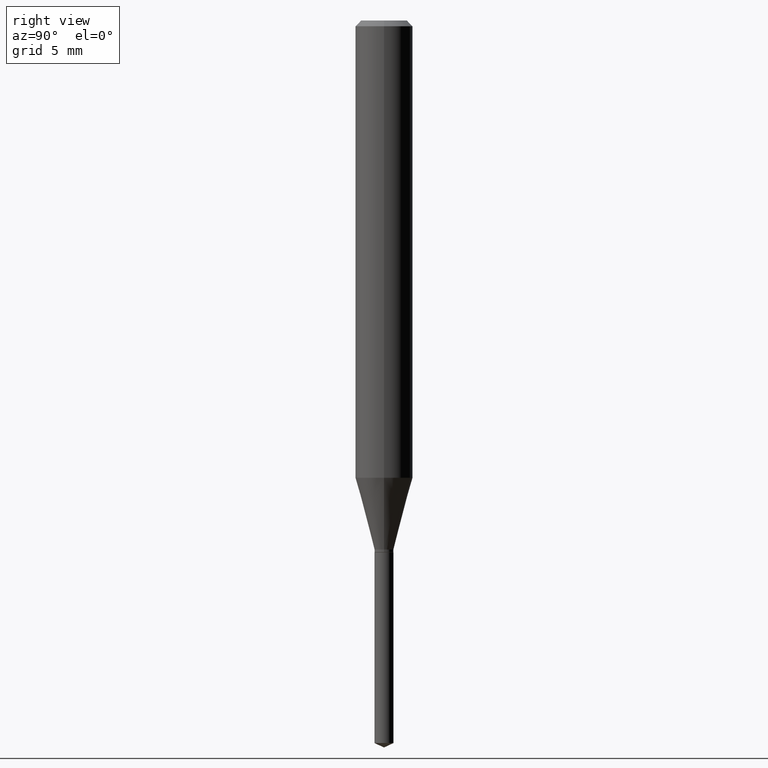
[diagram: clean part render]
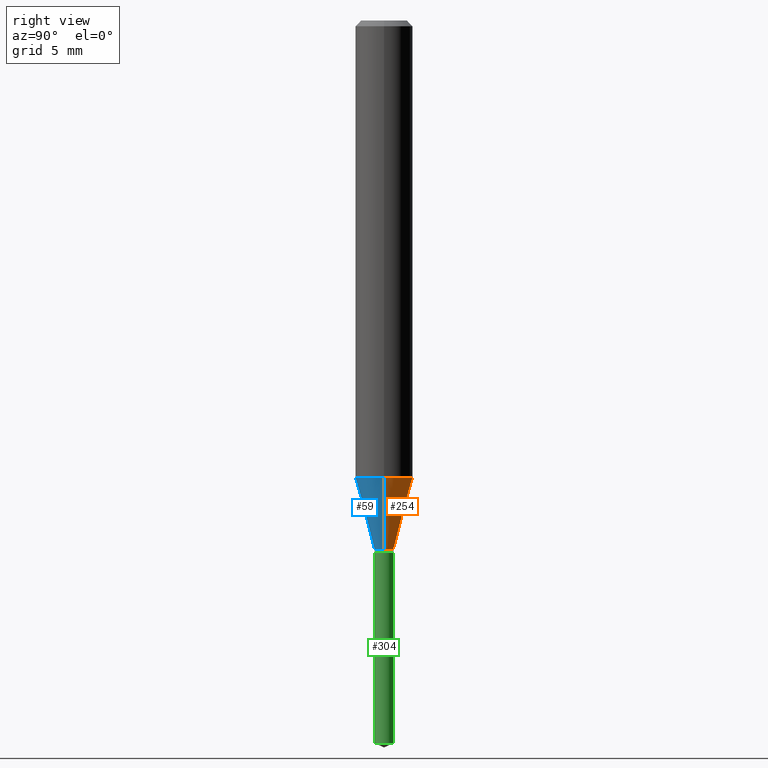
[diagram: same view with three faces highlighted in distinct colors, each labeled with its STEP entity id]
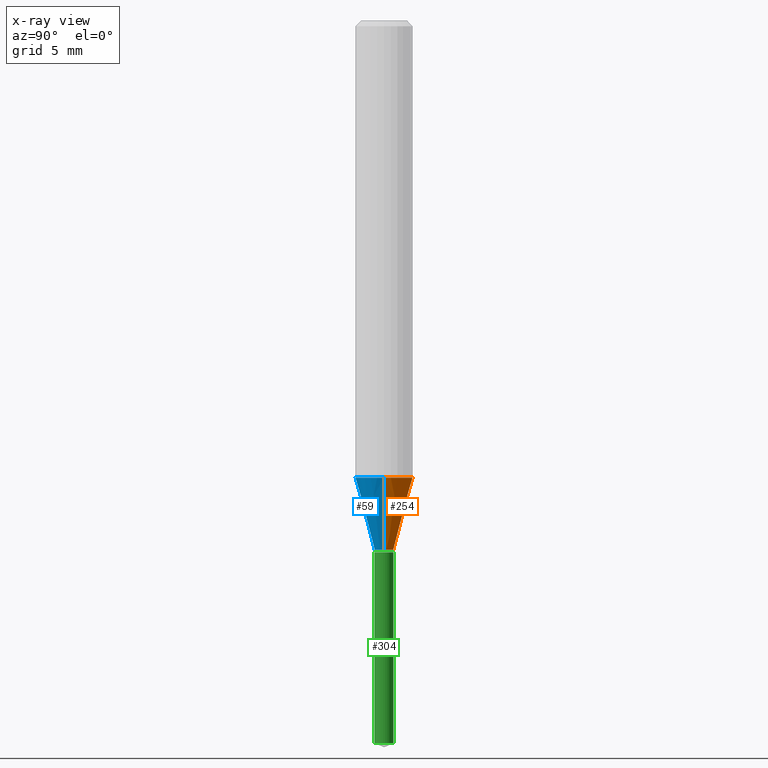
[diagram: x-ray of the same camera — body ghosted, the three highlighted faces saturated]
A machine part, right view with three faces highlighted in distinct colors.
The next image is the same camera in x-ray (body ghosted, the three faces saturated) — at least one of them is partly hidden behind the body in this view.
Their STEP definitions:

[orange] entity #254 — the highlighted conical surface has half-angle 15 deg.
#19 = LINE ( 'NONE', #174, #125 ) ;
#25 = AXIS2_PLACEMENT_3D ( 'NONE', #410, #71, #335 ) ;
#34 = VERTEX_POINT ( 'NONE', #109 ) ;
#38 = CARTESIAN_POINT ( 'NONE',  ( -0.01949999999999999997, -3.662270751991428189E-15, -1.088600000000000012 ) ) ;
#47 = EDGE_CURVE ( 'NONE', #34, #385, #250, .T. ) ;
#54 = CARTESIAN_POINT ( 'NONE',  ( 0.01949999999999999997, -3.936994357679530254E-15, -1.088600000000000012 ) ) ;
#71 = DIRECTION ( 'NONE',  ( -2.445468806185136597E-29, 3.491481338843145583E-15, 1.000000000000000000 ) ) ;
#79 = LINE ( 'NONE', #38, #197 ) ;
#93 = FACE_OUTER_BOUND ( 'NONE', #345, .T. ) ;
#109 = CARTESIAN_POINT ( 'NONE',  ( 0.05905000000000010935, -3.697818775159981807E-15, -0.9409973905606506817 ) ) ;
#125 = VECTOR ( 'NONE', #440, 39.37007874015748854 ) ;
#131 = DIRECTION ( 'NONE',  ( 1.000000000000000000, -6.982962677686258033E-15, 0.000000000000000000 ) ) ;
#141 = AXIS2_PLACEMENT_3D ( 'NONE', #211, #466, #131 ) ;
#174 = CARTESIAN_POINT ( 'NONE',  ( 0.01949999999999999997, -3.936994357679530254E-15, -1.088600000000000012 ) ) ;
#180 = VERTEX_POINT ( 'NONE', #54 ) ;
#197 = VECTOR ( 'NONE', #294, 39.37007874015748854 ) ;
#211 = CARTESIAN_POINT ( 'NONE',  ( 2.662137342413139764E-29, -3.800826585464648242E-15, -1.088600000000000012 ) ) ;
#234 = DIRECTION ( 'NONE',  ( 1.000000000000000000, -6.982962677686267499E-15, 0.000000000000000000 ) ) ;
#250 = CIRCLE ( 'NONE', #368, 0.05905000000000010935 ) ;
#254 = ADVANCED_FACE ( 'NONE', ( #93 ), #401, .T. ) ;
#258 = CARTESIAN_POINT ( 'NONE',  ( -0.01949999999999999997, -3.671697751606305097E-15, -1.088600000000000012 ) ) ;
#273 = ORIENTED_EDGE ( 'NONE', *, *, #465, .T. ) ;
#274 = EDGE_CURVE ( 'NONE', #180, #34, #19, .T. ) ;
#294 = DIRECTION ( 'NONE',  ( -0.2588190451025211281, 5.211531920934547886E-15, 0.9659258262890679791 ) ) ;
#297 = ORIENTED_EDGE ( 'NONE', *, *, #347, .T. ) ;
#308 = CARTESIAN_POINT ( 'NONE',  ( 2.301179765317683209E-29, -3.285474829042607282E-15, -0.9409973905606506817 ) ) ;
#314 = ORIENTED_EDGE ( 'NONE', *, *, #47, .F. ) ;
#332 = VERTEX_POINT ( 'NONE', #258 ) ;
#335 = DIRECTION ( 'NONE',  ( 1.000000000000000000, -6.982962677686258033E-15, 0.000000000000000000 ) ) ;
#345 = EDGE_LOOP ( 'NONE', ( #297, #273, #314, #375 ) ) ;
#347 = EDGE_CURVE ( 'NONE', #180, #332, #409, .T. ) ;
#368 = AXIS2_PLACEMENT_3D ( 'NONE', #308, #453, #234 ) ;
#371 = CARTESIAN_POINT ( 'NONE',  ( -0.05905000000000010935, -2.865899343576267000E-15, -0.9409973905606506817 ) ) ;
#375 = ORIENTED_EDGE ( 'NONE', *, *, #274, .F. ) ;
#385 = VERTEX_POINT ( 'NONE', #371 ) ;
#401 = CONICAL_SURFACE ( 'NONE', #141, 0.01949999999999999997, 0.2617993877991498519 ) ;
#409 = CIRCLE ( 'NONE', #25, 0.01949999999999999997 ) ;
#410 = CARTESIAN_POINT ( 'NONE',  ( 2.662137342413139764E-29, -3.800826585464648242E-15, -1.088600000000000012 ) ) ;
#440 = DIRECTION ( 'NONE',  ( 0.2588190451025211281, 1.565188264969622954E-15, 0.9659258262890679791 ) ) ;
#453 = DIRECTION ( 'NONE',  ( -2.445468806185136597E-29, 3.491481338843145583E-15, 1.000000000000000000 ) ) ;
#465 = EDGE_CURVE ( 'NONE', #332, #385, #79, .T. ) ;
#466 = DIRECTION ( 'NONE',  ( -2.445468806185136597E-29, 3.491481338843145583E-15, 1.000000000000000000 ) ) ;

[blue] entity #59 — the highlighted conical surface has half-angle 15 deg.
#8 = DIRECTION ( 'NONE',  ( 1.000000000000000000, -6.982962677686258033E-15, 0.000000000000000000 ) ) ;
#9 = EDGE_CURVE ( 'NONE', #385, #34, #44, .T. ) ;
#19 = LINE ( 'NONE', #174, #125 ) ;
#32 = ORIENTED_EDGE ( 'NONE', *, *, #465, .F. ) ;
#34 = VERTEX_POINT ( 'NONE', #109 ) ;
#35 = EDGE_CURVE ( 'NONE', #332, #180, #188, .T. ) ;
#38 = CARTESIAN_POINT ( 'NONE',  ( -0.01949999999999999997, -3.662270751991428189E-15, -1.088600000000000012 ) ) ;
#39 = DIRECTION ( 'NONE',  ( 1.000000000000000000, -6.982962677686258033E-15, 0.000000000000000000 ) ) ;
#44 = CIRCLE ( 'NONE', #231, 0.05905000000000010935 ) ;
#46 = CARTESIAN_POINT ( 'NONE',  ( 2.662137342413139764E-29, -3.800826585464648242E-15, -1.088600000000000012 ) ) ;
#54 = CARTESIAN_POINT ( 'NONE',  ( 0.01949999999999999997, -3.936994357679530254E-15, -1.088600000000000012 ) ) ;
#59 = ADVANCED_FACE ( 'NONE', ( #460 ), #221, .T. ) ;
#79 = LINE ( 'NONE', #38, #197 ) ;
#109 = CARTESIAN_POINT ( 'NONE',  ( 0.05905000000000010935, -3.697818775159981807E-15, -0.9409973905606506817 ) ) ;
#114 = DIRECTION ( 'NONE',  ( -2.445468806185136597E-29, 3.491481338843145583E-15, 1.000000000000000000 ) ) ;
#125 = VECTOR ( 'NONE', #440, 39.37007874015748854 ) ;
#162 = AXIS2_PLACEMENT_3D ( 'NONE', #46, #271, #8 ) ;
#174 = CARTESIAN_POINT ( 'NONE',  ( 0.01949999999999999997, -3.936994357679530254E-15, -1.088600000000000012 ) ) ;
#180 = VERTEX_POINT ( 'NONE', #54 ) ;
#182 = DIRECTION ( 'NONE',  ( 1.000000000000000000, -6.982962677686267499E-15, 0.000000000000000000 ) ) ;
#188 = CIRCLE ( 'NONE', #418, 0.01949999999999999997 ) ;
#191 = CARTESIAN_POINT ( 'NONE',  ( 2.301179765317683209E-29, -3.285474829042607282E-15, -0.9409973905606506817 ) ) ;
#197 = VECTOR ( 'NONE', #294, 39.37007874015748854 ) ;
#221 = CONICAL_SURFACE ( 'NONE', #162, 0.01949999999999999997, 0.2617993877991498519 ) ;
#231 = AXIS2_PLACEMENT_3D ( 'NONE', #191, #114, #182 ) ;
#258 = CARTESIAN_POINT ( 'NONE',  ( -0.01949999999999999997, -3.671697751606305097E-15, -1.088600000000000012 ) ) ;
#271 = DIRECTION ( 'NONE',  ( -2.445468806185136597E-29, 3.491481338843145583E-15, 1.000000000000000000 ) ) ;
#274 = EDGE_CURVE ( 'NONE', #180, #34, #19, .T. ) ;
#294 = DIRECTION ( 'NONE',  ( -0.2588190451025211281, 5.211531920934547886E-15, 0.9659258262890679791 ) ) ;
#300 = ORIENTED_EDGE ( 'NONE', *, *, #9, .F. ) ;
#332 = VERTEX_POINT ( 'NONE', #258 ) ;
#336 = CARTESIAN_POINT ( 'NONE',  ( 2.662137342413139764E-29, -3.800826585464648242E-15, -1.088600000000000012 ) ) ;
#350 = EDGE_LOOP ( 'NONE', ( #32, #457, #447, #300 ) ) ;
#371 = CARTESIAN_POINT ( 'NONE',  ( -0.05905000000000010935, -2.865899343576267000E-15, -0.9409973905606506817 ) ) ;
#385 = VERTEX_POINT ( 'NONE', #371 ) ;
#416 = DIRECTION ( 'NONE',  ( -2.445468806185136597E-29, 3.491481338843145583E-15, 1.000000000000000000 ) ) ;
#418 = AXIS2_PLACEMENT_3D ( 'NONE', #336, #416, #39 ) ;
#440 = DIRECTION ( 'NONE',  ( 0.2588190451025211281, 1.565188264969622954E-15, 0.9659258262890679791 ) ) ;
#447 = ORIENTED_EDGE ( 'NONE', *, *, #274, .T. ) ;
#457 = ORIENTED_EDGE ( 'NONE', *, *, #35, .T. ) ;
#460 = FACE_OUTER_BOUND ( 'NONE', #350, .T. ) ;
#465 = EDGE_CURVE ( 'NONE', #332, #385, #79, .T. ) ;

[green] entity #304 — the highlighted cylindrical surface (edge-blend (fillet) strip) has radius 0.4953 mm, axis along (-0, 0, 1).
#10 = CARTESIAN_POINT ( 'NONE',  ( -1.361677722148554121E-16, -0.01950000000000381983, -1.094499999999999806 ) ) ;
#15 = EDGE_CURVE ( 'NONE', #148, #189, #265, .T. ) ;
#28 = EDGE_CURVE ( 'NONE', #73, #189, #210, .T. ) ;
#31 = DIRECTION ( 'NONE',  ( -2.445460715294871217E-29, 3.491492925458510144E-15, 1.000000000000000000 ) ) ;
#36 = VECTOR ( 'NONE', #312, 39.37007874015748143 ) ;
#52 = CARTESIAN_POINT ( 'NONE',  ( 1.385558334732559469E-16, 0.01949999999999617664, -1.094499999999999806 ) ) ;
#73 = VERTEX_POINT ( 'NONE', #10 ) ;
#75 = CARTESIAN_POINT ( 'NONE',  ( 2.676565608369631794E-29, -3.821426325363822773E-15, -1.094499999999999806 ) ) ;
#77 = CARTESIAN_POINT ( 'NONE',  ( 3.636426058976498027E-29, -5.191861741382022382E-15, -1.487007000665977685 ) ) ;
#87 = ORIENTED_EDGE ( 'NONE', *, *, #15, .T. ) ;
#108 = DIRECTION ( 'NONE',  ( -6.982962677686264344E-15, -1.000000000000000000, 0.000000000000000000 ) ) ;
#121 = EDGE_LOOP ( 'NONE', ( #479, #87, #422, #327 ) ) ;
#128 = EDGE_CURVE ( 'NONE', #157, #73, #195, .T. ) ;
#134 = AXIS2_PLACEMENT_3D ( 'NONE', #480, #296, #329 ) ;
#148 = VERTEX_POINT ( 'NONE', #309 ) ;
#157 = VERTEX_POINT ( 'NONE', #455 ) ;
#177 = CYLINDRICAL_SURFACE ( 'NONE', #134, 0.01949999999999999997 ) ;
#181 = DIRECTION ( 'NONE',  ( -2.445460715294871217E-29, 3.491492925458510144E-15, 1.000000000000000000 ) ) ;
#186 = FACE_OUTER_BOUND ( 'NONE', #121, .T. ) ;
#189 = VERTEX_POINT ( 'NONE', #52 ) ;
#195 = LINE ( 'NONE', #426, #36 ) ;
#196 = VECTOR ( 'NONE', #444, 39.37007874015748143 ) ;
#210 = CIRCLE ( 'NONE', #471, 0.01949999999999999997 ) ;
#227 = DIRECTION ( 'NONE',  ( -6.982962677686264344E-15, -1.000000000000000000, 0.000000000000000000 ) ) ;
#261 = CIRCLE ( 'NONE', #301, 0.01949999999999999997 ) ;
#265 = LINE ( 'NONE', #334, #196 ) ;
#296 = DIRECTION ( 'NONE',  ( -2.445460715294871217E-29, 3.491492925458510144E-15, 1.000000000000000000 ) ) ;
#301 = AXIS2_PLACEMENT_3D ( 'NONE', #77, #181, #108 ) ;
#304 = ADVANCED_FACE ( 'NONE', ( #186 ), #177, .T. ) ;
#309 = CARTESIAN_POINT ( 'NONE',  ( 1.385558334732558236E-16, 0.01949999999999480274, -1.487007000665977685 ) ) ;
#312 = DIRECTION ( 'NONE',  ( -2.445460715294871217E-29, 3.491492925458510144E-15, 1.000000000000000000 ) ) ;
#327 = ORIENTED_EDGE ( 'NONE', *, *, #128, .F. ) ;
#329 = DIRECTION ( 'NONE',  ( -6.982962677686264344E-15, -1.000000000000000000, 0.000000000000000000 ) ) ;
#334 = CARTESIAN_POINT ( 'NONE',  ( 1.385558334732462587E-16, 0.01949999999999617664, -1.094499999999999806 ) ) ;
#422 = ORIENTED_EDGE ( 'NONE', *, *, #28, .F. ) ;
#423 = EDGE_CURVE ( 'NONE', #157, #148, #261, .T. ) ;
#426 = CARTESIAN_POINT ( 'NONE',  ( -1.361677722148554121E-16, -0.01950000000000381983, -1.094499999999999806 ) ) ;
#444 = DIRECTION ( 'NONE',  ( -2.445460715294871217E-29, 3.491492925458510144E-15, 1.000000000000000000 ) ) ;
#455 = CARTESIAN_POINT ( 'NONE',  ( -1.361677722148457732E-16, -0.01950000000000518333, -1.487007000665977685 ) ) ;
#471 = AXIS2_PLACEMENT_3D ( 'NONE', #75, #31, #227 ) ;
#479 = ORIENTED_EDGE ( 'NONE', *, *, #423, .T. ) ;
#480 = CARTESIAN_POINT ( 'NONE',  ( 2.676565608369631794E-29, -3.821426325363822773E-15, -1.094499999999999806 ) ) ;